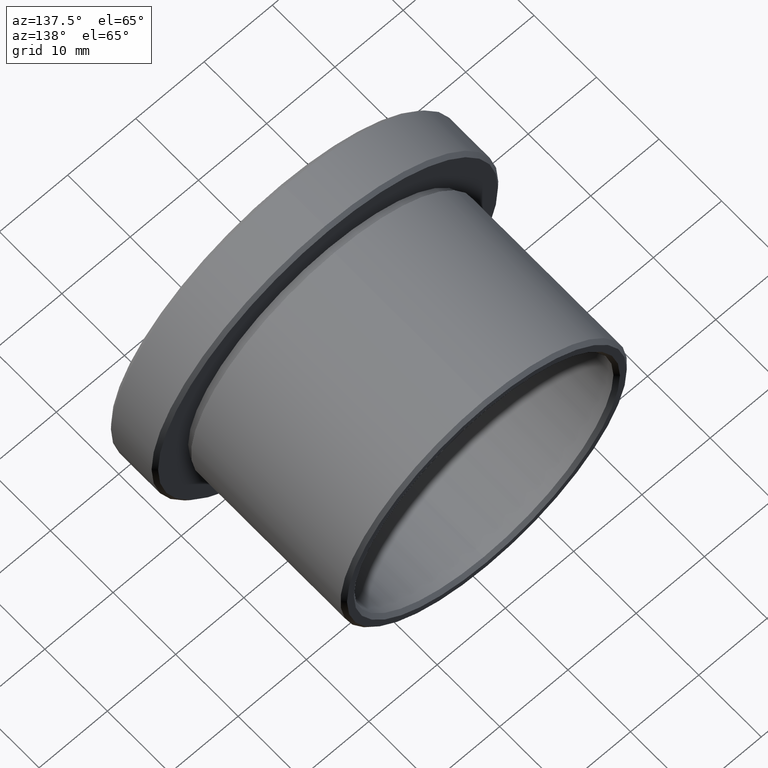
[diagram: clean part render]
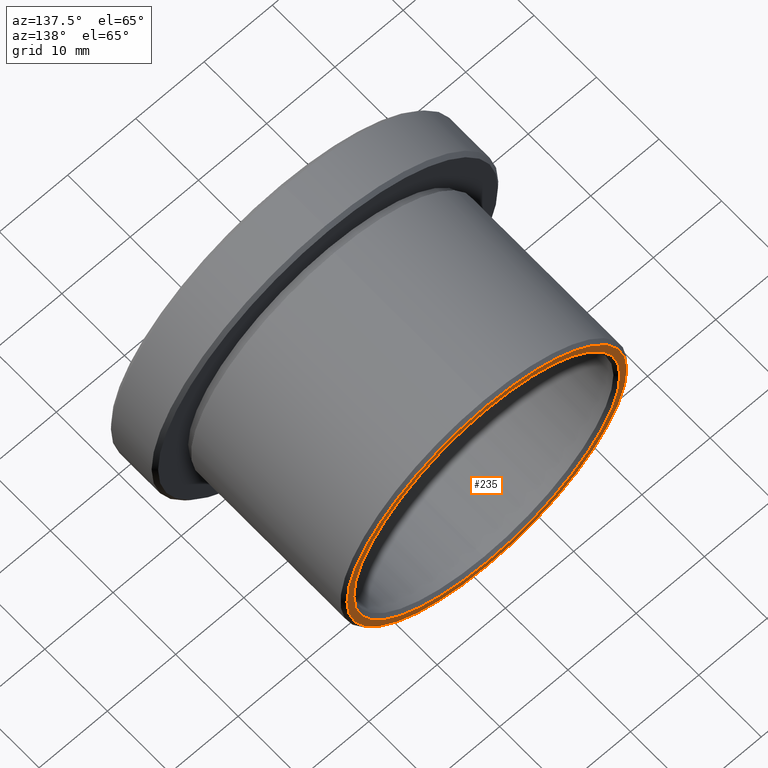
[diagram: same view with one face highlighted and labeled with its STEP entity id]
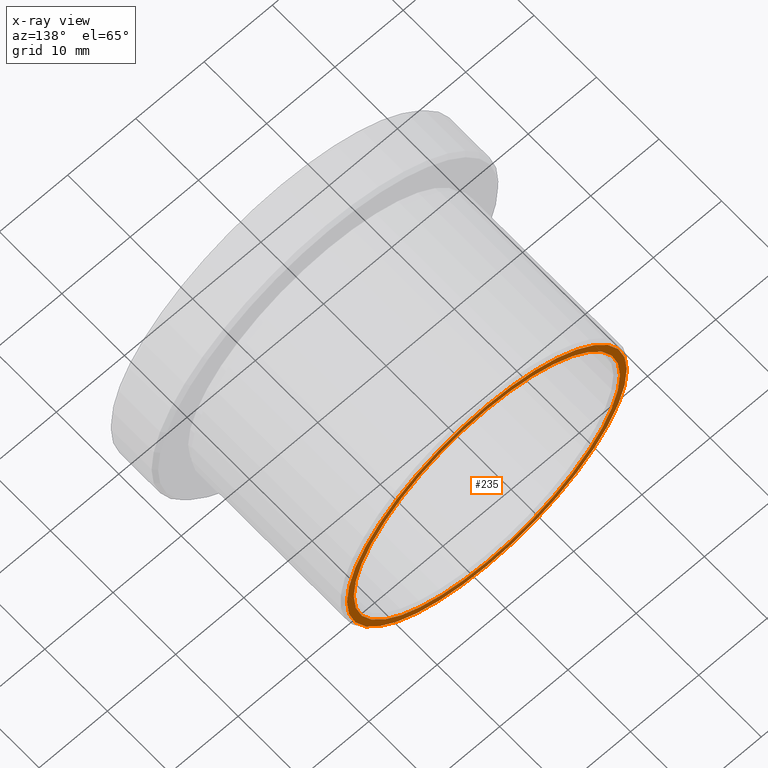
[diagram: x-ray of the same camera — body ghosted, the highlighted face saturated]
A machine part, auxiliary view. The second image highlights one B-rep face of the part: STEP entity #235.
The next image is the same camera in x-ray: the body ghosted, the highlighted face saturated — about 0% of this face is hidden behind the body in this view.
In plain terms, the highlighted planar face has unit normal (0, -1, 0).
Its self-contained STEP definition (entity closure, byte-faithful):
#24 = CARTESIAN_POINT ( 'NONE',  ( 2.388061258337339700E-015, 27.04285417456689100, -19.50000000000000700 ) ) ;
#28 = DIRECTION ( 'NONE',  ( -0.0000000000000000000, 1.000000000000000000, -0.0000000000000000000 ) ) ;
#33 = AXIS2_PLACEMENT_3D ( 'NONE', #748, #889, #141 ) ;
#50 = CIRCLE ( 'NONE', #828, 20.50000000000000400 ) ;
#76 = FACE_OUTER_BOUND ( 'NONE', #890, .T. ) ;
#91 = CARTESIAN_POINT ( 'NONE',  ( 0.0000000000000000000, 27.04285417456689100, 19.50000000000000700 ) ) ;
#109 = DIRECTION ( 'NONE',  ( 0.0000000000000000000, 0.0000000000000000000, 1.000000000000000000 ) ) ;
#138 = CIRCLE ( 'NONE', #33, 20.50000000000000400 ) ;
#141 = DIRECTION ( 'NONE',  ( 0.0000000000000000000, 0.0000000000000000000, 1.000000000000000000 ) ) ;
#166 = CARTESIAN_POINT ( 'NONE',  ( 0.0000000000000000000, 27.04285417456689100, 0.0000000000000000000 ) ) ;
#167 = EDGE_CURVE ( 'NONE', #376, #660, #138, .T. ) ;
#182 = AXIS2_PLACEMENT_3D ( 'NONE', #589, #244, #594 ) ;
#234 = ORIENTED_EDGE ( 'NONE', *, *, #167, .T. ) ;
#235 = ADVANCED_FACE ( 'NONE', ( #485, #76 ), #637, .F. ) ;
#239 = ORIENTED_EDGE ( 'NONE', *, *, #655, .T. ) ;
#244 = DIRECTION ( 'NONE',  ( -0.0000000000000000000, 1.000000000000000000, -0.0000000000000000000 ) ) ;
#334 = CARTESIAN_POINT ( 'NONE',  ( 0.0000000000000000000, 27.04285417456689100, -20.50000000000000400 ) ) ;
#348 = DIRECTION ( 'NONE',  ( 0.0000000000000000000, -0.0000000000000000000, -1.000000000000000000 ) ) ;
#376 = VERTEX_POINT ( 'NONE', #559 ) ;
#406 = DIRECTION ( 'NONE',  ( 0.0000000000000000000, 0.0000000000000000000, 1.000000000000000000 ) ) ;
#412 = ORIENTED_EDGE ( 'NONE', *, *, #879, .F. ) ;
#485 = FACE_BOUND ( 'NONE', #788, .T. ) ;
#493 = CIRCLE ( 'NONE', #888, 19.50000000000000700 ) ;
#558 = CARTESIAN_POINT ( 'NONE',  ( 19.50000000000000700, 27.04285417456689100, 0.0000000000000000000 ) ) ;
#559 = CARTESIAN_POINT ( 'NONE',  ( 2.541142108230758300E-015, 27.04285417456689100, 20.50000000000000400 ) ) ;
#589 = CARTESIAN_POINT ( 'NONE',  ( 0.0000000000000000000, 27.04285417456689100, 0.0000000000000000000 ) ) ;
#594 = DIRECTION ( 'NONE',  ( 0.0000000000000000000, 0.0000000000000000000, 1.000000000000000000 ) ) ;
#637 = PLANE ( 'NONE',  #801 ) ;
#655 = EDGE_CURVE ( 'NONE', #660, #376, #50, .T. ) ;
#660 = VERTEX_POINT ( 'NONE', #334 ) ;
#748 = CARTESIAN_POINT ( 'NONE',  ( 0.0000000000000000000, 27.04285417456689100, 0.0000000000000000000 ) ) ;
#755 = VERTEX_POINT ( 'NONE', #91 ) ;
#763 = CIRCLE ( 'NONE', #182, 19.50000000000000700 ) ;
#788 = EDGE_LOOP ( 'NONE', ( #816, #412 ) ) ;
#801 = AXIS2_PLACEMENT_3D ( 'NONE', #558, #896, #348 ) ;
#816 = ORIENTED_EDGE ( 'NONE', *, *, #871, .F. ) ;
#820 = VERTEX_POINT ( 'NONE', #24 ) ;
#828 = AXIS2_PLACEMENT_3D ( 'NONE', #887, #885, #406 ) ;
#871 = EDGE_CURVE ( 'NONE', #755, #820, #493, .T. ) ;
#879 = EDGE_CURVE ( 'NONE', #820, #755, #763, .T. ) ;
#885 = DIRECTION ( 'NONE',  ( -0.0000000000000000000, 1.000000000000000000, -0.0000000000000000000 ) ) ;
#887 = CARTESIAN_POINT ( 'NONE',  ( 0.0000000000000000000, 27.04285417456689100, 0.0000000000000000000 ) ) ;
#888 = AXIS2_PLACEMENT_3D ( 'NONE', #166, #28, #109 ) ;
#889 = DIRECTION ( 'NONE',  ( -0.0000000000000000000, 1.000000000000000000, -0.0000000000000000000 ) ) ;
#890 = EDGE_LOOP ( 'NONE', ( #239, #234 ) ) ;
#896 = DIRECTION ( 'NONE',  ( 0.0000000000000000000, -1.000000000000000000, 0.0000000000000000000 ) ) ;